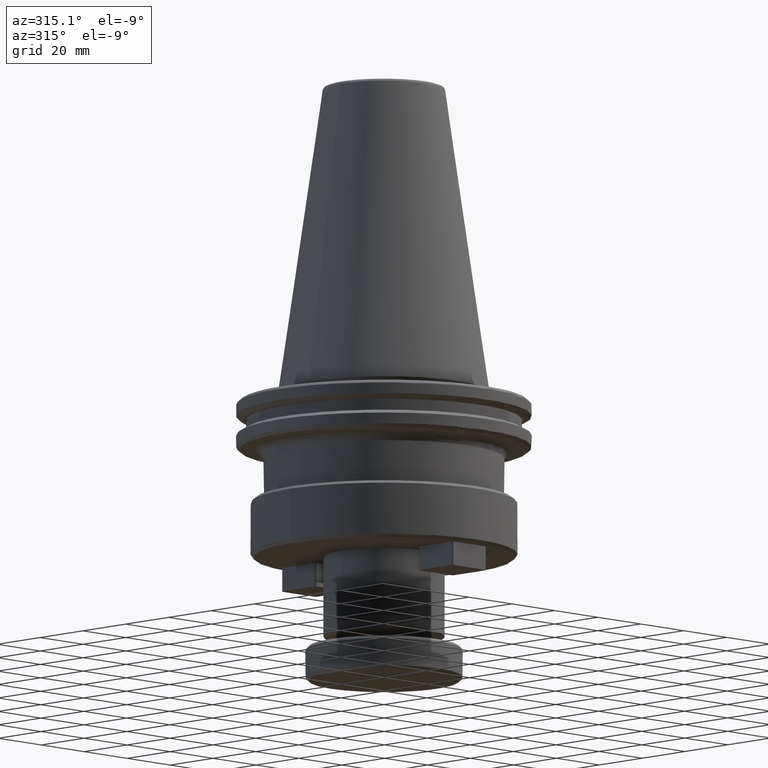
[diagram: clean part render]
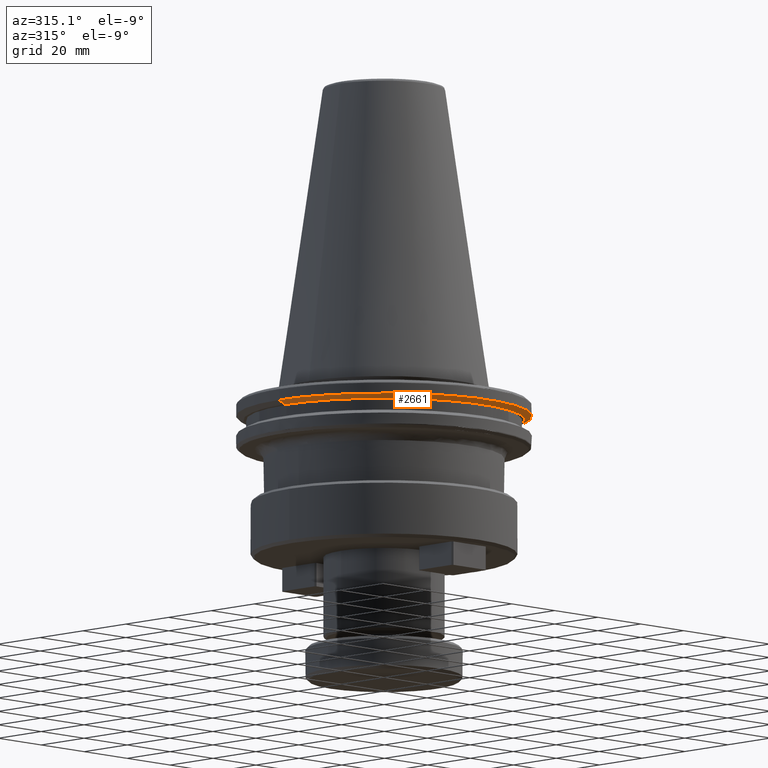
[diagram: same view with one face highlighted and labeled with its STEP entity id]
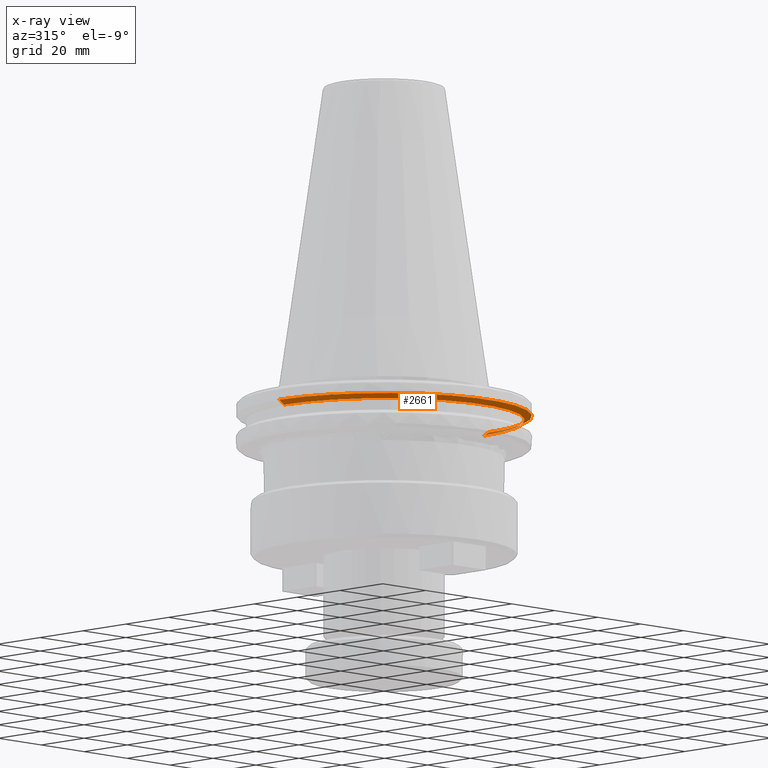
[diagram: x-ray of the same camera — body ghosted, the highlighted face saturated]
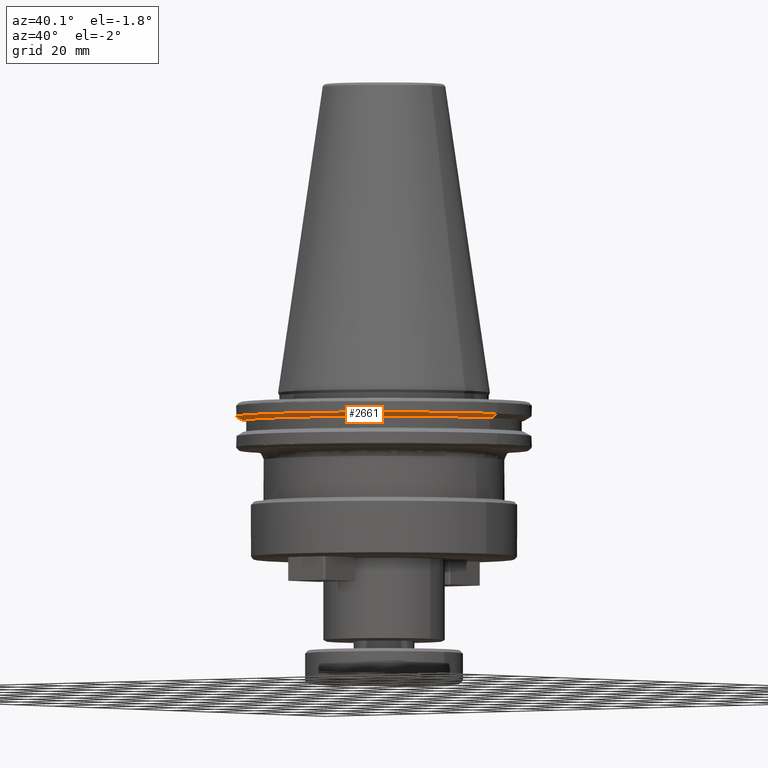
[diagram: same view with one face highlighted and labeled with its STEP entity id]
A machine part, auxiliary view. The second image highlights one B-rep face of the part: STEP entity #2661.
The next image is the same camera in x-ray: the body ghosted, the highlighted face saturated — about 4% of this face is hidden behind the body in this view.
A second angle (auxiliary view) of the same face is appended — the face is thin or edge-on in the first view.
In plain terms, the highlighted conical surface has half-angle 60 deg.
Its self-contained STEP definition (entity closure, byte-faithful):
#23 = VERTEX_POINT ( 'NONE', #3827 ) ;
#195 = ORIENTED_EDGE ( 'NONE', *, *, #3648, .F. ) ;
#258 = VERTEX_POINT ( 'NONE', #4465 ) ;
#265 = CONICAL_SURFACE ( 'NONE', #4700, 48.75000000000000700, 1.047197551196595900 ) ;
#310 = EDGE_CURVE ( 'NONE', #23, #258, #3350, .T. ) ;
#957 = CARTESIAN_POINT ( 'NONE',  ( 0.0000000000000000000, 0.0000000000000000000, -9.200000000000009900 ) ) ;
#986 = CARTESIAN_POINT ( 'NONE',  ( 0.0000000000000000000, 0.0000000000000000000, -7.852404735808348400 ) ) ;
#1009 = DIRECTION ( 'NONE',  ( 0.0000000000000000000, 0.0000000000000000000, 1.000000000000000000 ) ) ;
#1041 = DIRECTION ( 'NONE',  ( 1.000000000000000000, 0.0000000000000000000, 0.0000000000000000000 ) ) ;
#1061 = EDGE_CURVE ( 'NONE', #1947, #258, #4521, .T. ) ;
#1329 = ORIENTED_EDGE ( 'NONE', *, *, #1061, .F. ) ;
#1361 = DIRECTION ( 'NONE',  ( 1.000000000000000000, 0.0000000000000000000, 0.0000000000000000000 ) ) ;
#1551 = DIRECTION ( 'NONE',  ( 0.0000000000000000000, 0.0000000000000000000, 1.000000000000000000 ) ) ;
#1879 = VECTOR ( 'NONE', #3852, 1000.000000000000000 ) ;
#1919 = AXIS2_PLACEMENT_3D ( 'NONE', #4591, #4588, #4587 ) ;
#1947 = VERTEX_POINT ( 'NONE', #3378 ) ;
#2661 = ADVANCED_FACE ( 'NONE', ( #4285 ), #265, .T. ) ;
#2871 = DIRECTION ( 'NONE',  ( 0.8660254037844377100, 0.0000000000000000000, 0.5000000000000016700 ) ) ;
#3140 = CARTESIAN_POINT ( 'NONE',  ( -48.75000000000000700, 5.970153145843347900E-015, -7.852404735808348400 ) ) ;
#3237 = CIRCLE ( 'NONE', #3819, 46.41589653438085600 ) ;
#3289 = ORIENTED_EDGE ( 'NONE', *, *, #4526, .T. ) ;
#3350 = LINE ( 'NONE', #3766, #3407 ) ;
#3378 = CARTESIAN_POINT ( 'NONE',  ( -48.75000000000000000, 5.970153145843347100E-015, -7.852404735808352000 ) ) ;
#3407 = VECTOR ( 'NONE', #2871, 1000.000000000000000 ) ;
#3648 = EDGE_CURVE ( 'NONE', #4732, #1947, #4851, .T. ) ;
#3766 = CARTESIAN_POINT ( 'NONE',  ( 48.75000000000000700, 0.0000000000000000000, -7.852404735808348400 ) ) ;
#3819 = AXIS2_PLACEMENT_3D ( 'NONE', #957, #1551, #1361 ) ;
#3827 = CARTESIAN_POINT ( 'NONE',  ( 46.41589653438085600, 0.0000000000000000000, -9.200000000000009900 ) ) ;
#3852 = DIRECTION ( 'NONE',  ( -0.8660254037844377100, 1.060575238724905800E-016, 0.5000000000000016700 ) ) ;
#3888 = CARTESIAN_POINT ( 'NONE',  ( -46.41589653438085600, 5.827230528940885300E-015, -9.200000000000009900 ) ) ;
#3908 = EDGE_LOOP ( 'NONE', ( #195, #3289, #4852, #1329 ) ) ;
#4285 = FACE_OUTER_BOUND ( 'NONE', #3908, .T. ) ;
#4465 = CARTESIAN_POINT ( 'NONE',  ( 48.75000000000000000, 0.0000000000000000000, -7.852404735808352000 ) ) ;
#4521 = CIRCLE ( 'NONE', #1919, 48.75000000000000000 ) ;
#4526 = EDGE_CURVE ( 'NONE', #4732, #23, #3237, .T. ) ;
#4587 = DIRECTION ( 'NONE',  ( 1.000000000000000000, 0.0000000000000000000, 0.0000000000000000000 ) ) ;
#4588 = DIRECTION ( 'NONE',  ( 0.0000000000000000000, 0.0000000000000000000, 1.000000000000000000 ) ) ;
#4591 = CARTESIAN_POINT ( 'NONE',  ( 0.0000000000000000000, 0.0000000000000000000, -7.852404735808352000 ) ) ;
#4700 = AXIS2_PLACEMENT_3D ( 'NONE', #986, #1009, #1041 ) ;
#4732 = VERTEX_POINT ( 'NONE', #3888 ) ;
#4851 = LINE ( 'NONE', #3140, #1879 ) ;
#4852 = ORIENTED_EDGE ( 'NONE', *, *, #310, .T. ) ;